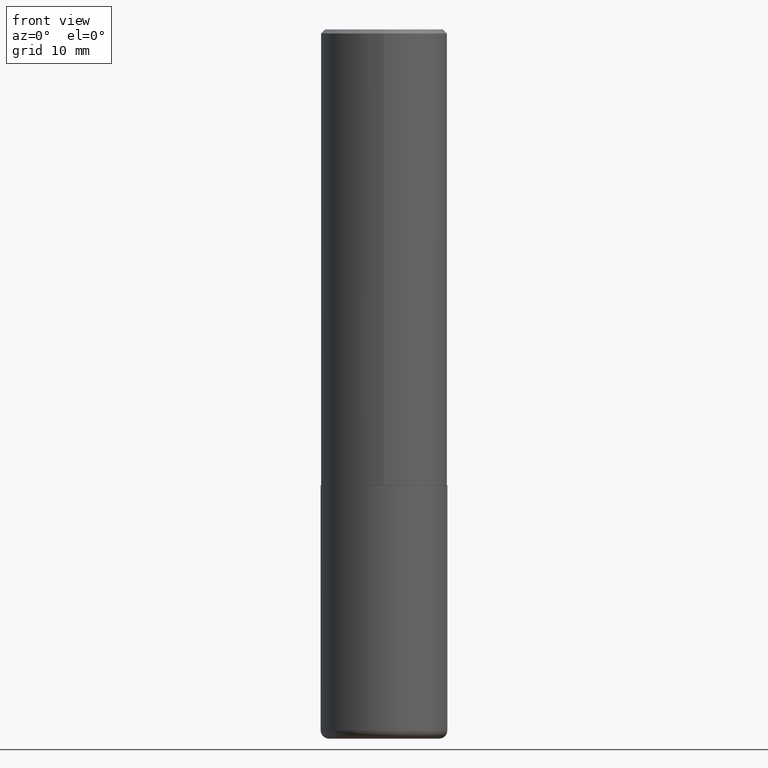
[diagram: clean part render]
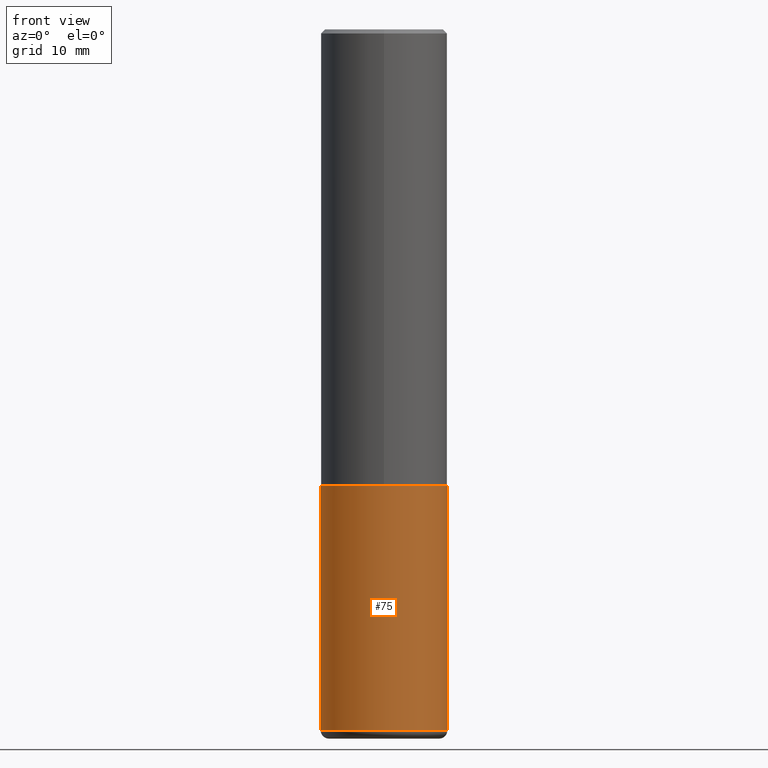
[diagram: same view with one face highlighted and labeled with its STEP entity id]
A machine part, front view. The second image highlights one B-rep face of the part: STEP entity #75.
In plain terms, the highlighted cylindrical surface (partial cylindrical patch) has radius 7.9375 mm, axis along (-0, 0, 1).
Its self-contained STEP definition (entity closure, byte-faithful):
#4 = VERTEX_POINT ( 'NONE', #272 ) ;
#5 = ORIENTED_EDGE ( 'NONE', *, *, #169, .F. ) ;
#25 = CARTESIAN_POINT ( 'NONE',  ( 0.3124999999999998890, -1.426270126917423794E-14, -3.459999999999999520 ) ) ;
#35 = AXIS2_PLACEMENT_3D ( 'NONE', #177, #348, #54 ) ;
#51 = FACE_OUTER_BOUND ( 'NONE', #270, .T. ) ;
#54 = DIRECTION ( 'NONE',  ( 1.000000000000000000, -6.982962677686266711E-15, 4.876176775795936353E-29 ) ) ;
#57 = VERTEX_POINT ( 'NONE', #25 ) ;
#62 = EDGE_CURVE ( 'NONE', #57, #256, #212, .T. ) ;
#75 = ADVANCED_FACE ( 'NONE', ( #51 ), #279, .T. ) ;
#92 = DIRECTION ( 'NONE',  ( -2.445468806185136597E-29, 3.491481338843145583E-15, 1.000000000000000000 ) ) ;
#95 = AXIS2_PLACEMENT_3D ( 'NONE', #318, #154, #274 ) ;
#99 = CARTESIAN_POINT ( 'NONE',  ( 0.3125000000000000000, -1.003800884917403522E-14, -2.249999999999999556 ) ) ;
#103 = DIRECTION ( 'NONE',  ( -2.445468806185136877E-29, 3.491481338843145188E-15, 1.000000000000000000 ) ) ;
#146 = CARTESIAN_POINT ( 'NONE',  ( 0.3125000000000000000, -2.182175836776958347E-15, 1.523805242436230075E-29 ) ) ;
#147 = VECTOR ( 'NONE', #103, 39.37007874015748143 ) ;
#154 = DIRECTION ( 'NONE',  ( -2.445468806185136597E-29, 3.491481338843145583E-15, 1.000000000000000000 ) ) ;
#163 = CARTESIAN_POINT ( 'NONE',  ( -0.3125000000000000000, 2.220446049250313081E-15, -1.537167215704658232E-29 ) ) ;
#169 = EDGE_CURVE ( 'NONE', #364, #256, #394, .T. ) ;
#177 = CARTESIAN_POINT ( 'NONE',  ( 0.000000000000000000, 0.000000000000000000, 0.000000000000000000 ) ) ;
#188 = CARTESIAN_POINT ( 'NONE',  ( -0.3125000000000000000, -7.747733173146866727E-15, -2.249999999999999556 ) ) ;
#197 = ORIENTED_EDGE ( 'NONE', *, *, #62, .T. ) ;
#200 = ORIENTED_EDGE ( 'NONE', *, *, #246, .F. ) ;
#212 = LINE ( 'NONE', #146, #341 ) ;
#227 = DIRECTION ( 'NONE',  ( 1.000000000000000000, -6.982962677686269077E-15, 0.000000000000000000 ) ) ;
#234 = ORIENTED_EDGE ( 'NONE', *, *, #365, .T. ) ;
#246 = EDGE_CURVE ( 'NONE', #4, #364, #360, .T. ) ;
#256 = VERTEX_POINT ( 'NONE', #99 ) ;
#270 = EDGE_LOOP ( 'NONE', ( #200, #234, #197, #5 ) ) ;
#272 = CARTESIAN_POINT ( 'NONE',  ( -0.3124999999999998890, -9.860079383146968087E-15, -3.459999999999999520 ) ) ;
#274 = DIRECTION ( 'NONE',  ( 1.000000000000000000, -6.982962677686264344E-15, 0.000000000000000000 ) ) ;
#279 = CYLINDRICAL_SURFACE ( 'NONE', #35, 0.3125000000000000000 ) ;
#315 = DIRECTION ( 'NONE',  ( -2.445468806185136877E-29, 3.491481338843145188E-15, 1.000000000000000000 ) ) ;
#318 = CARTESIAN_POINT ( 'NONE',  ( 8.461322069400571907E-29, -1.208052543239728275E-14, -3.459999999999999520 ) ) ;
#341 = VECTOR ( 'NONE', #315, 39.37007874015748143 ) ;
#348 = DIRECTION ( 'NONE',  ( -2.445468806185136597E-29, 3.491481338843145583E-15, 1.000000000000000000 ) ) ;
#350 = AXIS2_PLACEMENT_3D ( 'NONE', #388, #92, #227 ) ;
#360 = LINE ( 'NONE', #163, #147 ) ;
#364 = VERTEX_POINT ( 'NONE', #188 ) ;
#365 = EDGE_CURVE ( 'NONE', #4, #57, #414, .T. ) ;
#388 = CARTESIAN_POINT ( 'NONE',  ( 5.502304813916556222E-29, -7.855833012397076871E-15, -2.249999999999999556 ) ) ;
#394 = CIRCLE ( 'NONE', #350, 0.3125000000000000000 ) ;
#414 = CIRCLE ( 'NONE', #95, 0.3124999999999999445 ) ;